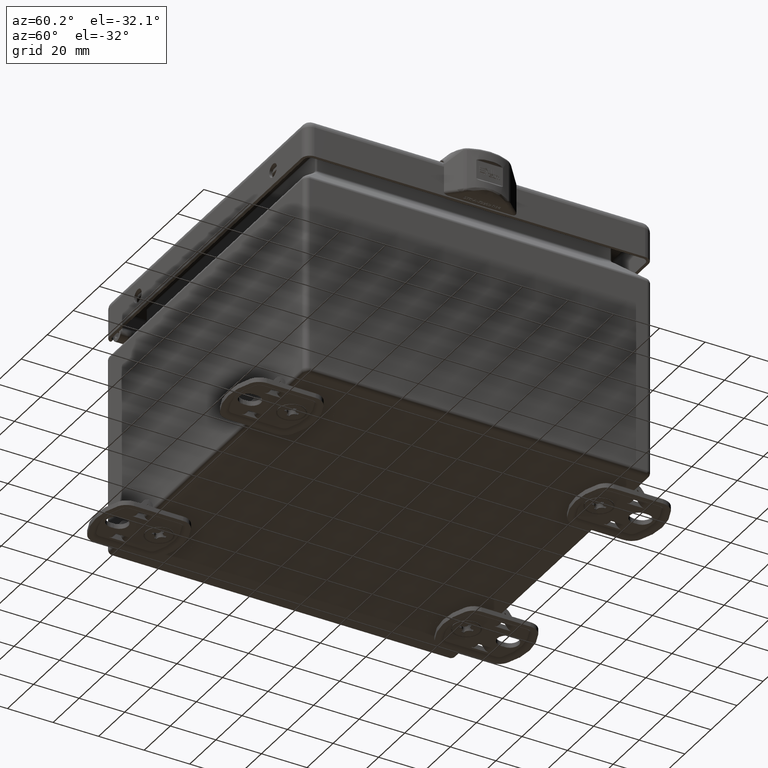
[diagram: clean part render]
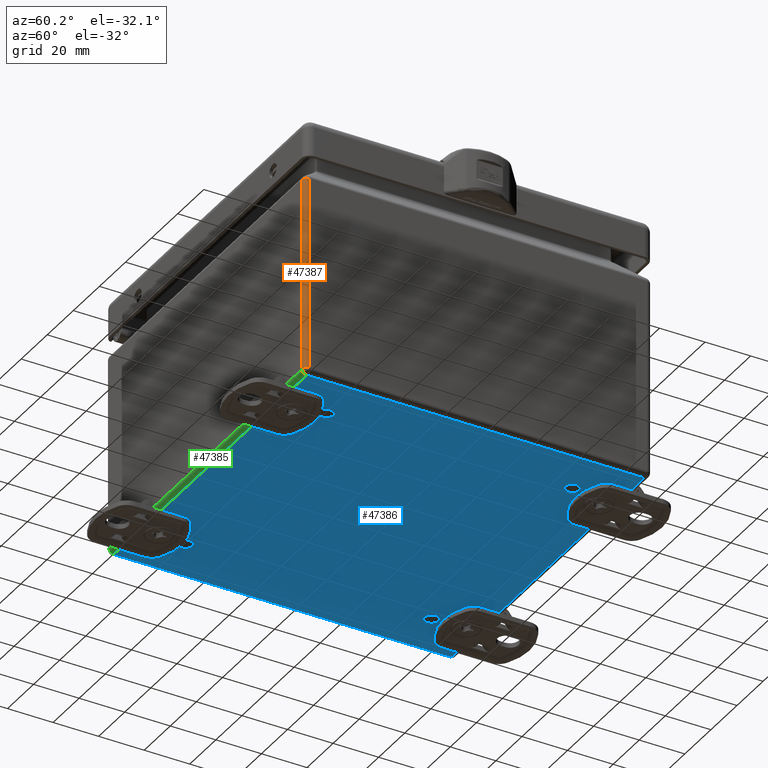
[diagram: same view with three faces highlighted in distinct colors, each labeled with its STEP entity id]
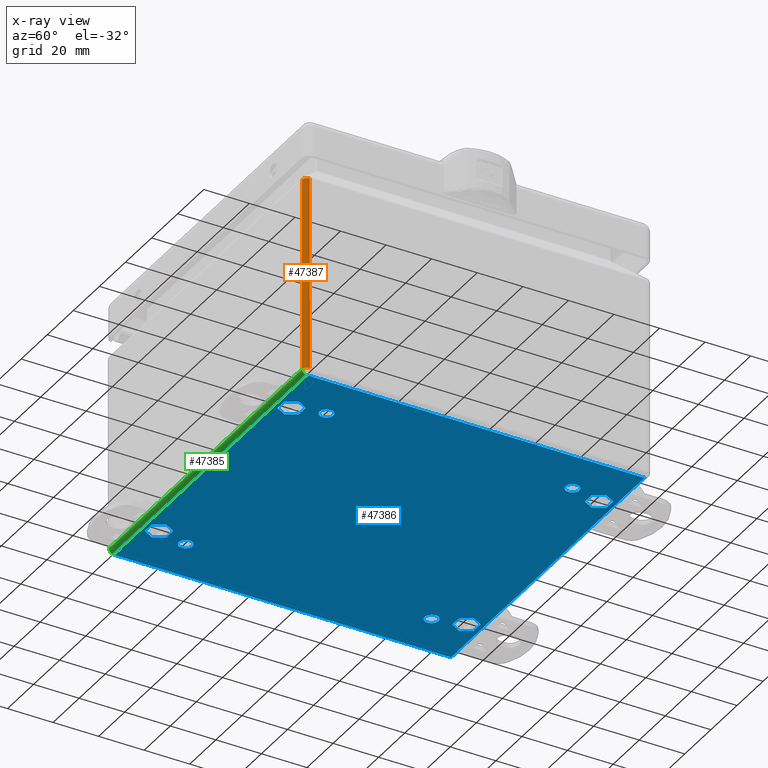
[diagram: x-ray of the same camera — body ghosted, the three highlighted faces saturated]
A machine part, auxiliary view with three faces highlighted in distinct colors.
The next image is the same camera in x-ray (body ghosted, the three faces saturated) — at least one of them is partly hidden behind the body in this view.
Their STEP definitions:

[orange] entity #47387 — the highlighted cylindrical surface (edge-blend (fillet) strip) has radius 2.1336 mm, axis along (-0, 0, 1).
#4218=FACE_OUTER_BOUND('',#7177,.T.);
#7177=EDGE_LOOP('',(#32589,#32590,#32591,#32592));
#10346=LINE('',#69459,#14374);
#10351=LINE('',#69474,#14379);
#14374=VECTOR('',#56049,0.393700787401575);
#14379=VECTOR('',#56064,0.393700787401575);
#18256=CIRCLE('',#51073,0.0839999999999999);
#18257=CIRCLE('',#51074,0.0839999999999999);
#20278=VERTEX_POINT('',#69453);
#20279=VERTEX_POINT('',#69457);
#20283=VERTEX_POINT('',#69471);
#20284=VERTEX_POINT('',#69473);
#24929=EDGE_CURVE('',#20278,#20279,#10346,.T.);
#24935=EDGE_CURVE('',#20279,#20283,#18256,.T.);
#24936=EDGE_CURVE('',#20283,#20284,#10351,.T.);
#24937=EDGE_CURVE('',#20284,#20278,#18257,.T.);
#32589=ORIENTED_EDGE('',*,*,#24935,.T.);
#32590=ORIENTED_EDGE('',*,*,#24936,.T.);
#32591=ORIENTED_EDGE('',*,*,#24937,.T.);
#32592=ORIENTED_EDGE('',*,*,#24929,.T.);
#46485=CYLINDRICAL_SURFACE('',#51072,0.084);
#47387=ADVANCED_FACE('',(#4218),#46485,.T.);
#51072=AXIS2_PLACEMENT_3D('',#69470,#56060,#56061);
#51073=AXIS2_PLACEMENT_3D('',#69472,#56062,#56063);
#51074=AXIS2_PLACEMENT_3D('',#69475,#56065,#56066);
#56049=DIRECTION('',(8.10202634738269E-17,-9.47019476145151E-17,-1.));
#56060=DIRECTION('center_axis',(-8.10202634738269E-17,9.47019476145151E-17,
1.));
#56061=DIRECTION('ref_axis',(0.707106781186547,-0.707106781186547,0.));
#56062=DIRECTION('center_axis',(0.,0.,1.));
#56063=DIRECTION('ref_axis',(0.,-1.,0.));
#56064=DIRECTION('',(-8.10202634738269E-17,9.47019476145151E-17,1.));
#56065=DIRECTION('center_axis',(0.,-1.66512639613822E-12,-1.));
#56066=DIRECTION('ref_axis',(1.,0.,0.));
#69453=CARTESIAN_POINT('',(2.916,-3.,3.43715505376066));
#69457=CARTESIAN_POINT('',(2.916,-3.,0.0840000000000003));
#69459=CARTESIAN_POINT('',(2.916,-3.,2.04359086935095));
#69470=CARTESIAN_POINT('Origin',(2.916,-2.916,2.04359086935095));
#69471=CARTESIAN_POINT('',(3.,-2.916,0.0840000000000003));
#69472=CARTESIAN_POINT('Origin',(2.916,-2.916,0.0840000000000003));
#69473=CARTESIAN_POINT('',(3.,-2.916,3.43715505376052));
#69474=CARTESIAN_POINT('',(3.,-2.916,2.04359086935095));
#69475=CARTESIAN_POINT('Origin',(2.916,-2.916,3.43715505376052));

[blue] entity #47386 — the highlighted planar face has unit normal (0, 0, 1).
#1976=FACE_BOUND('',#7169,.T.);
#1977=FACE_BOUND('',#7170,.T.);
#1978=FACE_BOUND('',#7171,.T.);
#1979=FACE_BOUND('',#7172,.T.);
#1980=FACE_BOUND('',#7173,.T.);
#1981=FACE_BOUND('',#7174,.T.);
#1982=FACE_BOUND('',#7175,.T.);
#1983=FACE_BOUND('',#7176,.T.);
#2970=PLANE('',#51071);
#4217=FACE_OUTER_BOUND('',#7168,.T.);
#7168=EDGE_LOOP('',(#32557,#32558,#32559,#32560));
#7169=EDGE_LOOP('',(#32561));
#7170=EDGE_LOOP('',(#32562));
#7171=EDGE_LOOP('',(#32563));
#7172=EDGE_LOOP('',(#32564));
#7173=EDGE_LOOP('',(#32565,#32566,#32567,#32568,#32569,#32570));
#7174=EDGE_LOOP('',(#32571,#32572,#32573,#32574,#32575,#32576));
#7175=EDGE_LOOP('',(#32577,#32578,#32579,#32580,#32581,#32582));
#7176=EDGE_LOOP('',(#32583,#32584,#32585,#32586,#32587,#32588));
#10093=LINE('',#68148,#14121);
#10097=LINE('',#68156,#14125);
#10100=LINE('',#68162,#14128);
#10103=LINE('',#68168,#14131);
#10106=LINE('',#68174,#14134);
#10109=LINE('',#68179,#14137);
#10111=LINE('',#68184,#14139);
#10115=LINE('',#68192,#14143);
#10118=LINE('',#68198,#14146);
#10121=LINE('',#68204,#14149);
#10124=LINE('',#68210,#14152);
#10127=LINE('',#68215,#14155);
#10129=LINE('',#68220,#14157);
#10133=LINE('',#68228,#14161);
#10136=LINE('',#68234,#14164);
#10139=LINE('',#68240,#14167);
#10142=LINE('',#68246,#14170);
#10145=LINE('',#68251,#14173);
#10147=LINE('',#68256,#14175);
#10151=LINE('',#68264,#14179);
#10154=LINE('',#68270,#14182);
#10157=LINE('',#68276,#14185);
#10160=LINE('',#68282,#14188);
#10163=LINE('',#68287,#14191);
#10347=LINE('',#69462,#14375);
#10348=LINE('',#69466,#14376);
#10349=LINE('',#69468,#14377);
#10350=LINE('',#69469,#14378);
#14121=VECTOR('',#55254,0.393700787401575);
#14125=VECTOR('',#55260,0.393700787401575);
#14128=VECTOR('',#55265,0.393700787401575);
#14131=VECTOR('',#55270,0.393700787401575);
#14134=VECTOR('',#55275,0.393700787401575);
#14137=VECTOR('',#55280,0.393700787401575);
#14139=VECTOR('',#55284,0.393700787401575);
#14143=VECTOR('',#55290,0.393700787401575);
#14146=VECTOR('',#55295,0.393700787401575);
#14149=VECTOR('',#55300,0.393700787401575);
#14152=VECTOR('',#55305,0.393700787401575);
#14155=VECTOR('',#55310,0.393700787401575);
#14157=VECTOR('',#55314,0.393700787401575);
#14161=VECTOR('',#55320,0.393700787401575);
#14164=VECTOR('',#55325,0.393700787401575);
#14167=VECTOR('',#55330,0.393700787401575);
#14170=VECTOR('',#55335,0.393700787401575);
#14173=VECTOR('',#55340,0.393700787401575);
#14175=VECTOR('',#55344,0.393700787401575);
#14179=VECTOR('',#55350,0.393700787401575);
#14182=VECTOR('',#55355,0.393700787401575);
#14185=VECTOR('',#55360,0.393700787401575);
#14188=VECTOR('',#55365,0.393700787401575);
#14191=VECTOR('',#55370,0.393700787401575);
#14375=VECTOR('',#56052,0.393700787401575);
#14376=VECTOR('',#56057,0.393700787401575);
#14377=VECTOR('',#56058,0.393700787401575);
#14378=VECTOR('',#56059,0.393700787401575);
#18146=CIRCLE('',#50787,0.118);
#18148=CIRCLE('',#50790,0.118);
#18150=CIRCLE('',#50793,0.118);
#18152=CIRCLE('',#50796,0.118);
#20036=VERTEX_POINT('',#68124);
#20038=VERTEX_POINT('',#68130);
#20040=VERTEX_POINT('',#68136);
#20042=VERTEX_POINT('',#68142);
#20043=VERTEX_POINT('',#68146);
#20044=VERTEX_POINT('',#68147);
#20047=VERTEX_POINT('',#68155);
#20049=VERTEX_POINT('',#68161);
#20051=VERTEX_POINT('',#68167);
#20053=VERTEX_POINT('',#68173);
#20055=VERTEX_POINT('',#68182);
#20056=VERTEX_POINT('',#68183);
#20059=VERTEX_POINT('',#68191);
#20061=VERTEX_POINT('',#68197);
#20063=VERTEX_POINT('',#68203);
#20065=VERTEX_POINT('',#68209);
#20067=VERTEX_POINT('',#68218);
#20068=VERTEX_POINT('',#68219);
#20071=VERTEX_POINT('',#68227);
#20073=VERTEX_POINT('',#68233);
#20075=VERTEX_POINT('',#68239);
#20077=VERTEX_POINT('',#68245);
#20079=VERTEX_POINT('',#68254);
#20080=VERTEX_POINT('',#68255);
#20083=VERTEX_POINT('',#68263);
#20085=VERTEX_POINT('',#68269);
#20087=VERTEX_POINT('',#68275);
#20089=VERTEX_POINT('',#68281);
#20277=VERTEX_POINT('',#69449);
#20280=VERTEX_POINT('',#69461);
#20281=VERTEX_POINT('',#69465);
#20282=VERTEX_POINT('',#69467);
#24517=EDGE_CURVE('',#20036,#20036,#18146,.T.);
#24520=EDGE_CURVE('',#20038,#20038,#18148,.T.);
#24523=EDGE_CURVE('',#20040,#20040,#18150,.T.);
#24526=EDGE_CURVE('',#20042,#20042,#18152,.T.);
#24527=EDGE_CURVE('',#20043,#20044,#10093,.T.);
#24531=EDGE_CURVE('',#20047,#20043,#10097,.T.);
#24534=EDGE_CURVE('',#20049,#20047,#10100,.T.);
#24537=EDGE_CURVE('',#20051,#20049,#10103,.T.);
#24540=EDGE_CURVE('',#20044,#20053,#10106,.T.);
#24543=EDGE_CURVE('',#20053,#20051,#10109,.T.);
#24545=EDGE_CURVE('',#20055,#20056,#10111,.T.);
#24549=EDGE_CURVE('',#20059,#20055,#10115,.T.);
#24552=EDGE_CURVE('',#20061,#20059,#10118,.T.);
#24555=EDGE_CURVE('',#20063,#20061,#10121,.T.);
#24558=EDGE_CURVE('',#20056,#20065,#10124,.T.);
#24561=EDGE_CURVE('',#20065,#20063,#10127,.T.);
#24563=EDGE_CURVE('',#20067,#20068,#10129,.T.);
#24567=EDGE_CURVE('',#20071,#20067,#10133,.T.);
#24570=EDGE_CURVE('',#20073,#20071,#10136,.T.);
#24573=EDGE_CURVE('',#20075,#20073,#10139,.T.);
#24576=EDGE_CURVE('',#20068,#20077,#10142,.T.);
#24579=EDGE_CURVE('',#20077,#20075,#10145,.T.);
#24581=EDGE_CURVE('',#20079,#20080,#10147,.T.);
#24585=EDGE_CURVE('',#20083,#20079,#10151,.T.);
#24588=EDGE_CURVE('',#20085,#20083,#10154,.T.);
#24591=EDGE_CURVE('',#20087,#20085,#10157,.T.);
#24594=EDGE_CURVE('',#20080,#20089,#10160,.T.);
#24597=EDGE_CURVE('',#20089,#20087,#10163,.T.);
#24930=EDGE_CURVE('',#20277,#20280,#10347,.T.);
#24932=EDGE_CURVE('',#20281,#20277,#10348,.T.);
#24933=EDGE_CURVE('',#20282,#20281,#10349,.T.);
#24934=EDGE_CURVE('',#20280,#20282,#10350,.T.);
#32557=ORIENTED_EDGE('',*,*,#24932,.F.);
#32558=ORIENTED_EDGE('',*,*,#24933,.F.);
#32559=ORIENTED_EDGE('',*,*,#24934,.F.);
#32560=ORIENTED_EDGE('',*,*,#24930,.F.);
#32561=ORIENTED_EDGE('',*,*,#24517,.T.);
#32562=ORIENTED_EDGE('',*,*,#24520,.T.);
#32563=ORIENTED_EDGE('',*,*,#24523,.T.);
#32564=ORIENTED_EDGE('',*,*,#24526,.T.);
#32565=ORIENTED_EDGE('',*,*,#24534,.T.);
#32566=ORIENTED_EDGE('',*,*,#24531,.T.);
#32567=ORIENTED_EDGE('',*,*,#24527,.T.);
#32568=ORIENTED_EDGE('',*,*,#24540,.T.);
#32569=ORIENTED_EDGE('',*,*,#24543,.T.);
#32570=ORIENTED_EDGE('',*,*,#24537,.T.);
#32571=ORIENTED_EDGE('',*,*,#24552,.T.);
#32572=ORIENTED_EDGE('',*,*,#24549,.T.);
#32573=ORIENTED_EDGE('',*,*,#24545,.T.);
#32574=ORIENTED_EDGE('',*,*,#24558,.T.);
#32575=ORIENTED_EDGE('',*,*,#24561,.T.);
#32576=ORIENTED_EDGE('',*,*,#24555,.T.);
#32577=ORIENTED_EDGE('',*,*,#24570,.T.);
#32578=ORIENTED_EDGE('',*,*,#24567,.T.);
#32579=ORIENTED_EDGE('',*,*,#24563,.T.);
#32580=ORIENTED_EDGE('',*,*,#24576,.T.);
#32581=ORIENTED_EDGE('',*,*,#24579,.T.);
#32582=ORIENTED_EDGE('',*,*,#24573,.T.);
#32583=ORIENTED_EDGE('',*,*,#24588,.T.);
#32584=ORIENTED_EDGE('',*,*,#24585,.T.);
#32585=ORIENTED_EDGE('',*,*,#24581,.T.);
#32586=ORIENTED_EDGE('',*,*,#24594,.T.);
#32587=ORIENTED_EDGE('',*,*,#24597,.T.);
#32588=ORIENTED_EDGE('',*,*,#24591,.T.);
#47386=ADVANCED_FACE('',(#4217,#1976,#1977,#1978,#1979,#1980,#1981,#1982,
#1983),#2970,.F.);
#50787=AXIS2_PLACEMENT_3D('',#68126,#55229,#55230);
#50790=AXIS2_PLACEMENT_3D('',#68132,#55236,#55237);
#50793=AXIS2_PLACEMENT_3D('',#68138,#55243,#55244);
#50796=AXIS2_PLACEMENT_3D('',#68144,#55250,#55251);
#51071=AXIS2_PLACEMENT_3D('',#69464,#56055,#56056);
#55229=DIRECTION('center_axis',(0.,0.,1.));
#55230=DIRECTION('ref_axis',(-2.22044604925031E-16,-1.,0.));
#55236=DIRECTION('center_axis',(0.,0.,1.));
#55237=DIRECTION('ref_axis',(-2.22044604925031E-16,-1.,0.));
#55243=DIRECTION('center_axis',(0.,0.,1.));
#55244=DIRECTION('ref_axis',(-2.22044604925031E-16,-1.,0.));
#55250=DIRECTION('center_axis',(0.,0.,1.));
#55251=DIRECTION('ref_axis',(-2.22044604925031E-16,-1.,0.));
#55254=DIRECTION('',(1.,-3.25429695590814E-16,0.));
#55260=DIRECTION('',(0.5,-0.866025403784439,0.));
#55265=DIRECTION('',(-0.5,-0.866025403784439,0.));
#55270=DIRECTION('',(-1.,1.52744235934653E-17,0.));
#55275=DIRECTION('',(0.5,0.866025403784439,0.));
#55280=DIRECTION('',(-0.5,0.866025403784439,0.));
#55284=DIRECTION('',(-1.,-1.18659514259248E-16,0.));
#55290=DIRECTION('',(-0.5,0.866025403784438,0.));
#55295=DIRECTION('',(0.5,0.866025403784439,0.));
#55300=DIRECTION('',(1.,4.28814786256597E-16,0.));
#55305=DIRECTION('',(-0.5,-0.866025403784439,0.));
#55310=DIRECTION('',(0.5,-0.866025403784438,0.));
#55314=DIRECTION('',(-1.,-1.18659514259248E-16,0.));
#55320=DIRECTION('',(-0.5,0.866025403784438,0.));
#55325=DIRECTION('',(0.5,0.866025403784439,0.));
#55330=DIRECTION('',(1.,4.28814786256597E-16,0.));
#55335=DIRECTION('',(-0.5,-0.866025403784439,0.));
#55340=DIRECTION('',(0.5,-0.866025403784438,0.));
#55344=DIRECTION('',(1.,-3.25429695590814E-16,0.));
#55350=DIRECTION('',(0.5,-0.866025403784439,0.));
#55355=DIRECTION('',(-0.5,-0.866025403784439,0.));
#55360=DIRECTION('',(-1.,1.52744235934653E-17,0.));
#55365=DIRECTION('',(0.5,0.866025403784439,0.));
#55370=DIRECTION('',(-0.5,0.866025403784439,0.));
#56052=DIRECTION('',(1.,-3.04444751532733E-17,0.));
#56055=DIRECTION('center_axis',(0.,0.,1.));
#56056=DIRECTION('ref_axis',(1.,0.,0.));
#56057=DIRECTION('',(-1.15555796663234E-33,-1.,0.));
#56058=DIRECTION('',(-1.,3.04444751532733E-17,0.));
#56059=DIRECTION('',(1.34234899264874E-17,1.,0.));
#68124=CARTESIAN_POINT('',(2.125,-2.007,0.));
#68126=CARTESIAN_POINT('Origin',(2.125,-2.125,0.));
#68130=CARTESIAN_POINT('',(-2.125,-2.007,0.));
#68132=CARTESIAN_POINT('Origin',(-2.125,-2.125,0.));
#68136=CARTESIAN_POINT('',(-2.125,2.243,0.));
#68138=CARTESIAN_POINT('Origin',(-2.125,2.125,0.));
#68142=CARTESIAN_POINT('',(2.125,2.243,0.));
#68144=CARTESIAN_POINT('Origin',(2.125,2.125,0.));
#68146=CARTESIAN_POINT('',(-2.10569601384771,2.47292913385827,0.));
#68147=CARTESIAN_POINT('',(-1.89430398615229,2.47292913385827,0.));
#68148=CARTESIAN_POINT('',(-1.05284800692385,2.47292913385827,0.));
#68155=CARTESIAN_POINT('',(-2.21139202769541,2.656,0.));
#68156=CARTESIAN_POINT('',(-1.35992715612062,1.18121958157235,0.));
#68161=CARTESIAN_POINT('',(-2.10569601384771,2.83907086614173,0.));
#68162=CARTESIAN_POINT('',(-2.4571608854225,2.23031585149852,0.));
#68167=CARTESIAN_POINT('',(-1.89430398615229,2.83907086614173,0.));
#68168=CARTESIAN_POINT('',(-0.947151993076146,2.83907086614173,0.));
#68173=CARTESIAN_POINT('',(-1.78860797230459,2.656,0.));
#68174=CARTESIAN_POINT('',(-2.19292085080323,1.95570955228592,0.));
#68179=CARTESIAN_POINT('',(-0.989991107653645,1.27275501464321,0.));
#68182=CARTESIAN_POINT('',(2.10569601384771,-2.47292913385827,0.));
#68183=CARTESIAN_POINT('',(1.89430398615229,-2.47292913385827,0.));
#68184=CARTESIAN_POINT('',(1.05284800692385,-2.47292913385827,0.));
#68191=CARTESIAN_POINT('',(2.21139202769541,-2.656,0.));
#68192=CARTESIAN_POINT('',(1.35992715612062,-1.18121958157235,0.));
#68197=CARTESIAN_POINT('',(2.10569601384771,-2.83907086614173,0.));
#68198=CARTESIAN_POINT('',(2.4571608854225,-2.23031585149852,-5.46369598732853E-18));
#68203=CARTESIAN_POINT('',(1.89430398615229,-2.83907086614173,0.));
#68204=CARTESIAN_POINT('',(0.947151993076147,-2.83907086614173,0.));
#68209=CARTESIAN_POINT('',(1.78860797230459,-2.656,0.));
#68210=CARTESIAN_POINT('',(2.19292085080323,-1.95570955228592,0.));
#68215=CARTESIAN_POINT('',(0.989991107653644,-1.27275501464321,-5.46369598732853E-18));
#68218=CARTESIAN_POINT('',(-1.89430398615229,-2.47292913385827,0.));
#68219=CARTESIAN_POINT('',(-2.10569601384771,-2.47292913385827,0.));
#68220=CARTESIAN_POINT('',(-0.947151993076146,-2.47292913385827,0.));
#68227=CARTESIAN_POINT('',(-1.78860797230459,-2.656,0.));
#68228=CARTESIAN_POINT('',(-2.14007284387938,-2.04724498535679,0.));
#68233=CARTESIAN_POINT('',(-1.89430398615229,-2.83907086614173,0.));
#68234=CARTESIAN_POINT('',(-1.0428391145775,-1.36429044771408,-5.46369598732853E-18));
#68239=CARTESIAN_POINT('',(-2.10569601384771,-2.83907086614173,0.));
#68240=CARTESIAN_POINT('',(-1.05284800692385,-2.83907086614173,0.));
#68245=CARTESIAN_POINT('',(-2.21139202769541,-2.656,0.));
#68246=CARTESIAN_POINT('',(-1.30707914919677,-1.08968414850148,0.));
#68251=CARTESIAN_POINT('',(-2.51000889234635,-2.13878041842765,-5.46369598732853E-18));
#68254=CARTESIAN_POINT('',(1.89430398615229,2.47292913385827,0.));
#68255=CARTESIAN_POINT('',(2.10569601384771,2.47292913385827,0.));
#68256=CARTESIAN_POINT('',(0.947151993076147,2.47292913385827,0.));
#68263=CARTESIAN_POINT('',(1.78860797230459,2.656,0.));
#68264=CARTESIAN_POINT('',(2.14007284387938,2.04724498535679,0.));
#68269=CARTESIAN_POINT('',(1.89430398615229,2.83907086614173,0.));
#68270=CARTESIAN_POINT('',(1.0428391145775,1.36429044771408,0.));
#68275=CARTESIAN_POINT('',(2.10569601384771,2.83907086614173,0.));
#68276=CARTESIAN_POINT('',(1.05284800692385,2.83907086614173,0.));
#68281=CARTESIAN_POINT('',(2.21139202769541,2.656,0.));
#68282=CARTESIAN_POINT('',(1.30707914919677,1.08968414850148,0.));
#68287=CARTESIAN_POINT('',(2.51000889234635,2.13878041842765,0.));
#69449=CARTESIAN_POINT('',(-2.916,-2.916,0.));
#69461=CARTESIAN_POINT('',(2.916,-2.916,0.));
#69462=CARTESIAN_POINT('',(-4.31093768170351E-17,-2.916,0.));
#69464=CARTESIAN_POINT('Origin',(0.,0.,0.));
#69465=CARTESIAN_POINT('',(-2.916,2.916,0.));
#69466=CARTESIAN_POINT('',(-2.916,1.04259596456692,0.));
#69467=CARTESIAN_POINT('',(2.916,2.916,0.));
#69468=CARTESIAN_POINT('',(4.31093768170351E-17,2.916,0.));
#69469=CARTESIAN_POINT('',(2.916,-1.90076617359062E-17,0.));

[green] entity #47385 — the highlighted cylindrical surface (edge-blend (fillet) strip) has radius 2.1336 mm, axis along (-1, 0, 0).
#4216=FACE_OUTER_BOUND('',#7167,.T.);
#7167=EDGE_LOOP('',(#32553,#32554,#32555,#32556));
#10345=LINE('',#69458,#14373);
#10347=LINE('',#69462,#14375);
#14373=VECTOR('',#56048,0.393700787401575);
#14375=VECTOR('',#56052,0.393700787401575);
#18253=CIRCLE('',#51065,0.084);
#18255=CIRCLE('',#51070,0.0839999999999999);
#20274=VERTEX_POINT('',#69438);
#20277=VERTEX_POINT('',#69449);
#20279=VERTEX_POINT('',#69457);
#20280=VERTEX_POINT('',#69461);
#24925=EDGE_CURVE('',#20277,#20274,#18253,.T.);
#24928=EDGE_CURVE('',#20279,#20274,#10345,.T.);
#24930=EDGE_CURVE('',#20277,#20280,#10347,.T.);
#24931=EDGE_CURVE('',#20280,#20279,#18255,.T.);
#32553=ORIENTED_EDGE('',*,*,#24925,.F.);
#32554=ORIENTED_EDGE('',*,*,#24930,.T.);
#32555=ORIENTED_EDGE('',*,*,#24931,.T.);
#32556=ORIENTED_EDGE('',*,*,#24928,.T.);
#46484=CYLINDRICAL_SURFACE('',#51069,0.084);
#47385=ADVANCED_FACE('',(#4216),#46484,.T.);
#51065=AXIS2_PLACEMENT_3D('',#69451,#56039,#56040);
#51069=AXIS2_PLACEMENT_3D('',#69460,#56050,#56051);
#51070=AXIS2_PLACEMENT_3D('',#69463,#56053,#56054);
#56039=DIRECTION('center_axis',(-1.,0.,0.));
#56040=DIRECTION('ref_axis',(0.,4.16281599034554E-15,-1.));
#56048=DIRECTION('',(-1.,3.04444751532733E-17,0.));
#56050=DIRECTION('center_axis',(-1.,0.,0.));
#56051=DIRECTION('ref_axis',(0.,4.16281599034554E-15,-1.));
#56052=DIRECTION('',(1.,-3.04444751532733E-17,0.));
#56053=DIRECTION('center_axis',(-1.,0.,0.));
#56054=DIRECTION('ref_axis',(0.,0.,-1.));
#69438=CARTESIAN_POINT('',(-2.916,-3.,0.0839999999999999));
#69449=CARTESIAN_POINT('',(-2.916,-2.916,0.));
#69451=CARTESIAN_POINT('Origin',(-2.916,-2.916,0.084));
#69457=CARTESIAN_POINT('',(2.916,-3.,0.0840000000000003));
#69458=CARTESIAN_POINT('',(-4.566671272991E-17,-3.,0.0839999999999999));
#69460=CARTESIAN_POINT('Origin',(1.458,-2.916,0.084));
#69461=CARTESIAN_POINT('',(2.916,-2.916,0.));
#69462=CARTESIAN_POINT('',(-4.31093768170351E-17,-2.916,0.));
#69463=CARTESIAN_POINT('Origin',(2.916,-2.916,0.0839999999999999));